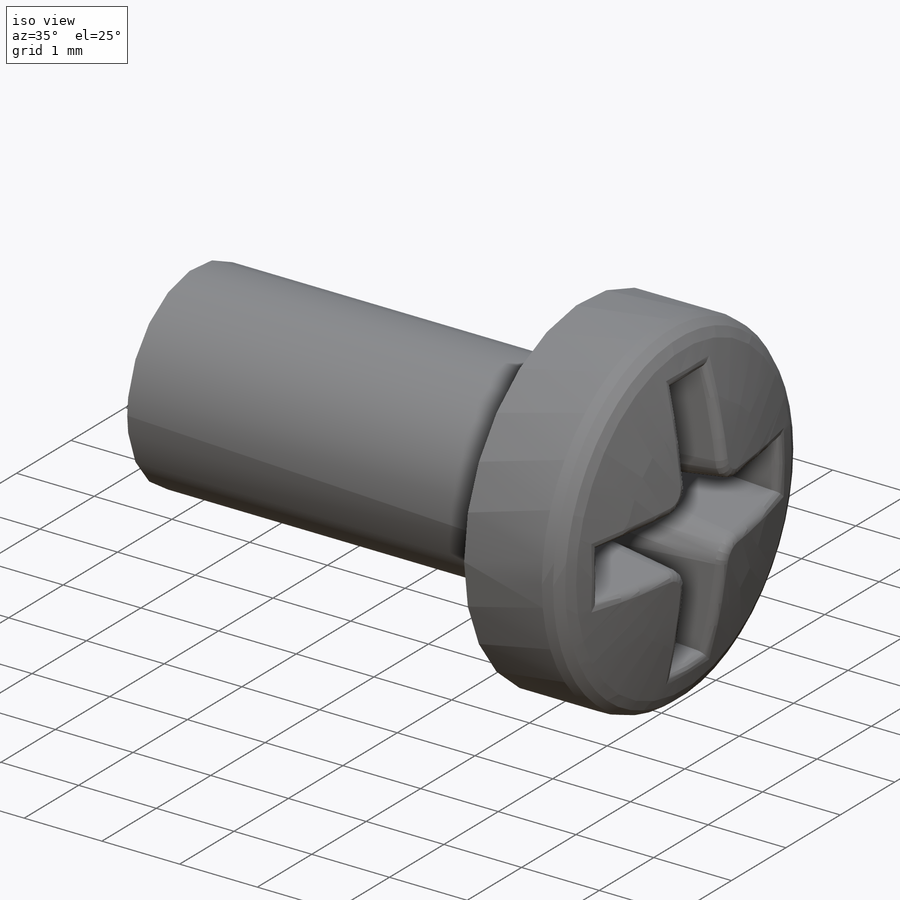
[diagram: iso view]
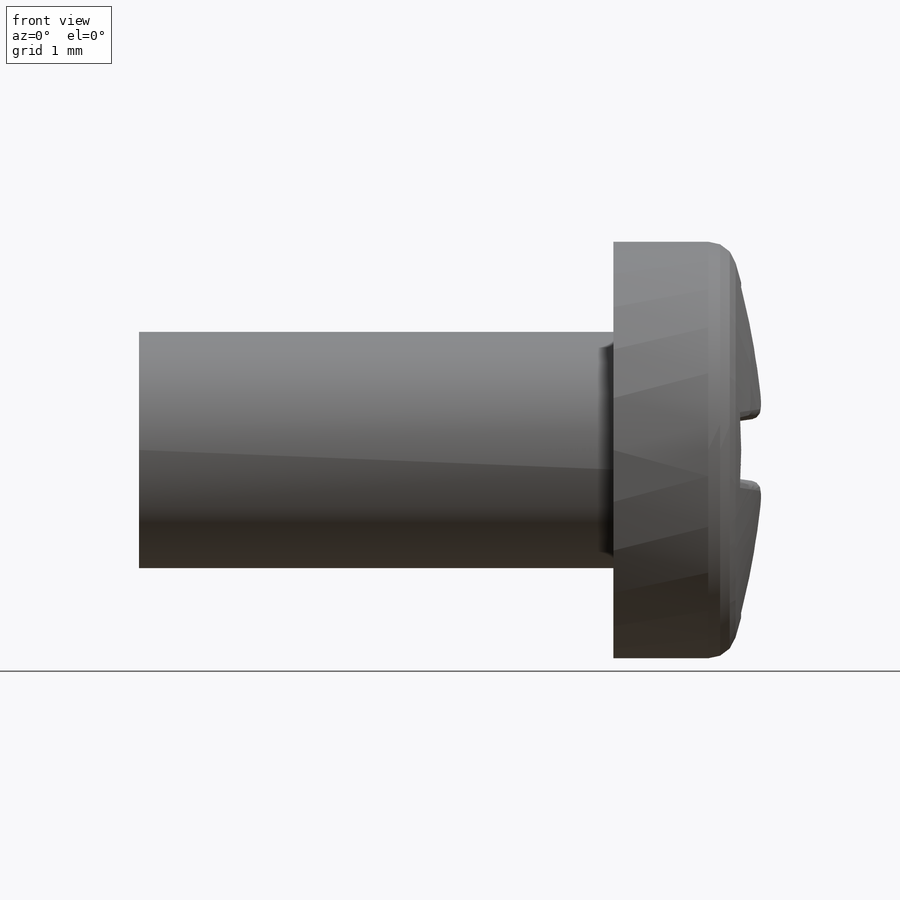
[diagram: front view]
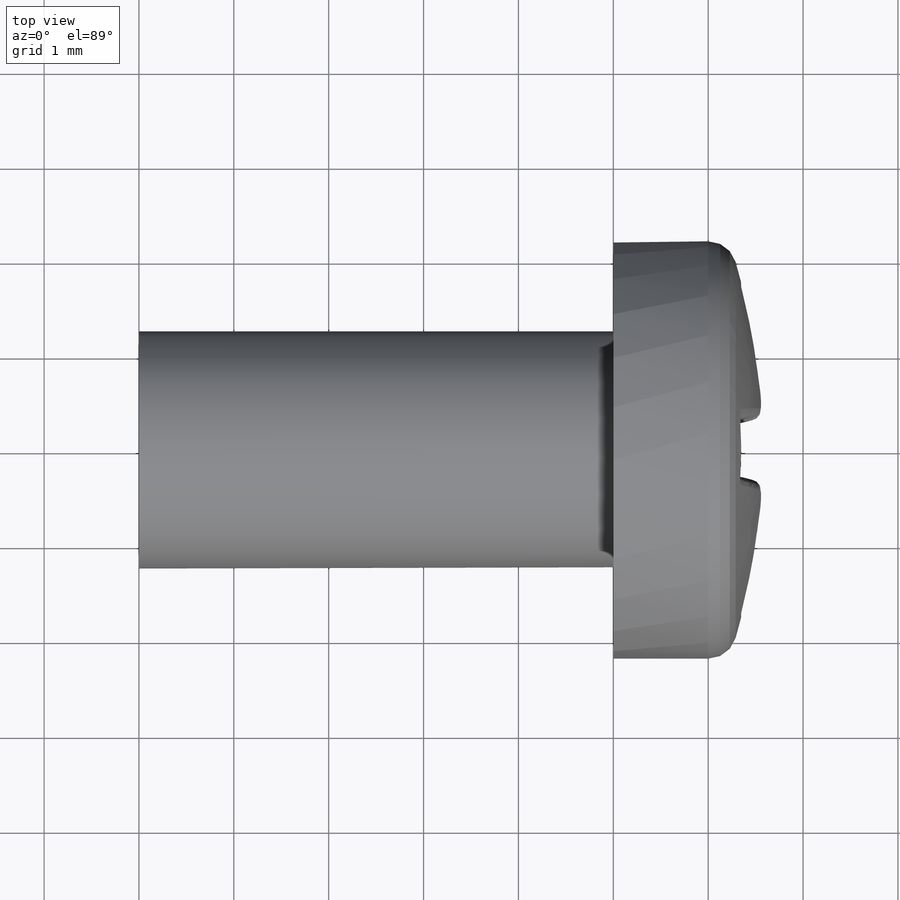
[diagram: top view]
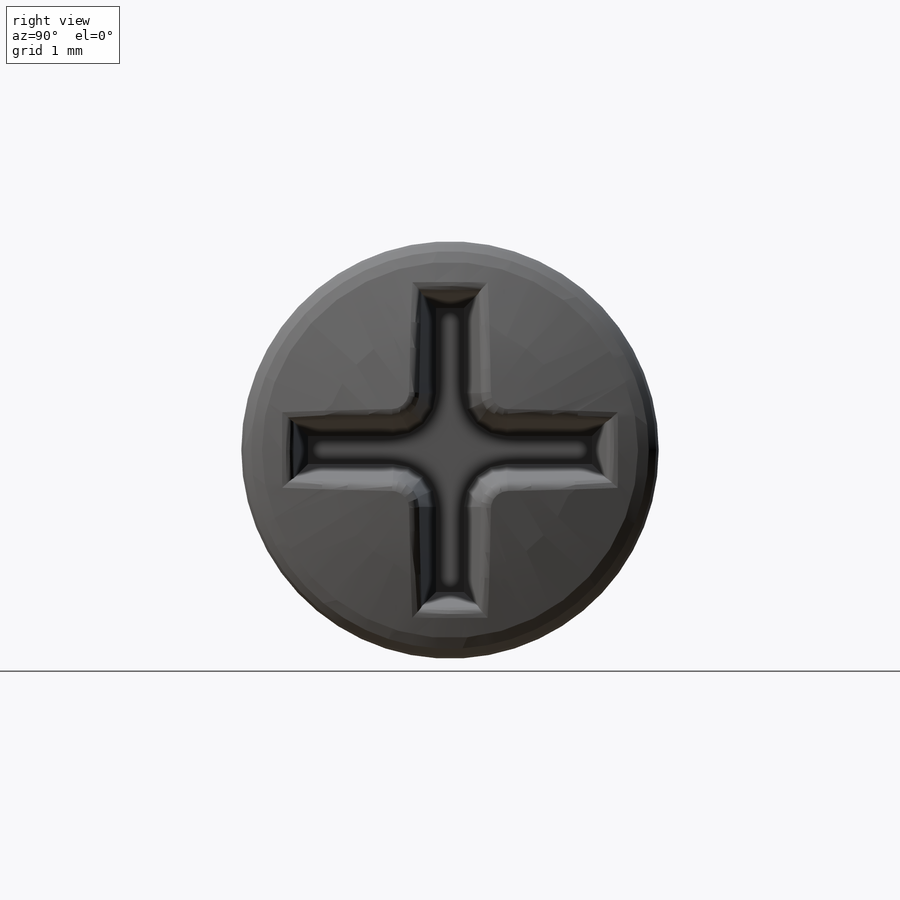
[diagram: right view]
SOLIDWORKS PART (.sldprt)
format: sldprt  version: not decoded by parser v0  size: 329,216 bytes
history: native  units: mm
features: sketch x3, material x1, revolve x1, plane x1, cut_extrude x1, fillet x1, extrude x1 (+13 scaffold rows collapsed)
feature tree (22):
  scaffold x13  (default folders/planes/origin — collapsed)
  material  "Material <not specified>"
  sketch  "Sketch1"  dims[c1.D2=0.3mm c1.D1=2.2mm c2.D2=2.0mm c2.D3=2.0mm c2.D4=2.0mm c3.D3=1.0mm c3.D4=1.62mm]
  revolve  "Revolve1"  Angle=360deg
  plane  "Plane1"  Offset=2mm
  sketch  "Sketch2"  dims[c1.D4=0.1mm c1.D6=0.2mm c1.D1=3.5mm c1.D2=1.75mm c1.D3=0.8mm c2.D4=0.4mm c2.D5=0.8mm c2.D6=0.4mm c2.D7=3.5mm c2.D8=1.75mm]
  cut_extrude  "Cut-Extrude1"  Depth=1.8mm
  fillet  "Fillet1"  Radius=0.1mm
  sketch  "Sketch3"  dims[D1=2.5mm]
  extrude  "Extrude1"  Depth=5mm
decode coverage: 7 of 7 modeling features carry decoded parameters
note: suppression state not decoded; provenance and decode notes live in map.json
